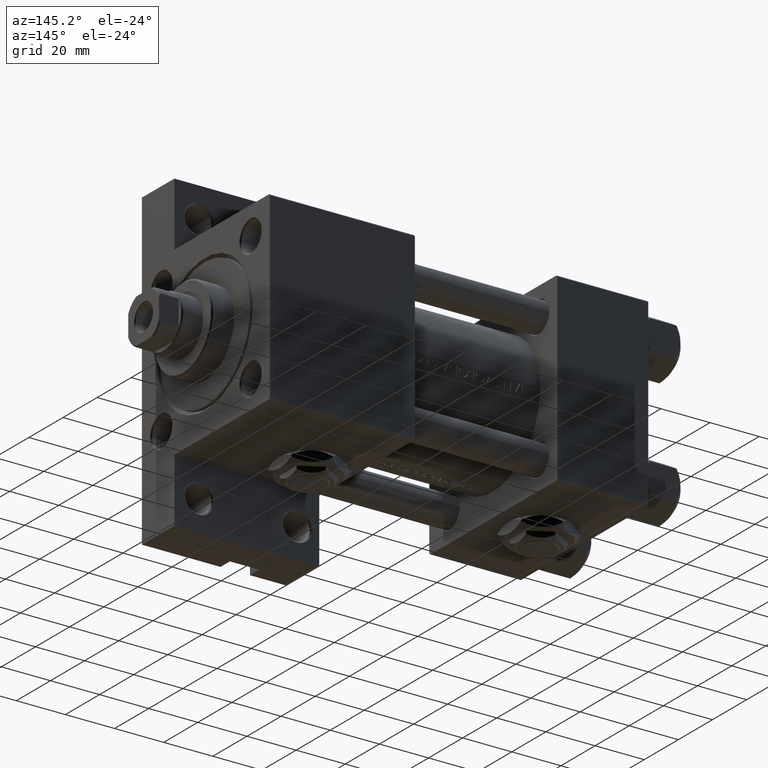
[diagram: clean part render]
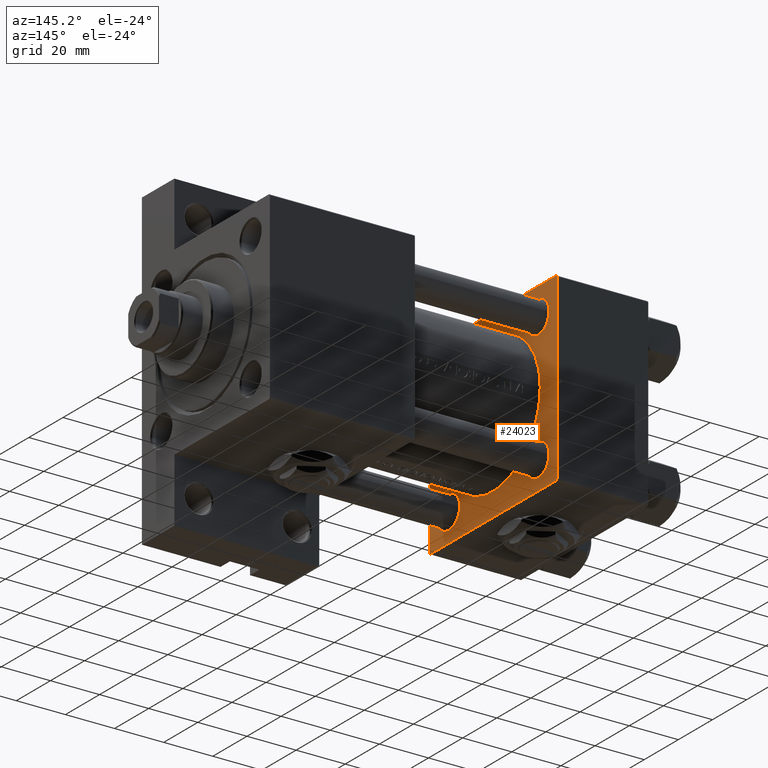
[diagram: same view with one face highlighted and labeled with its STEP entity id]
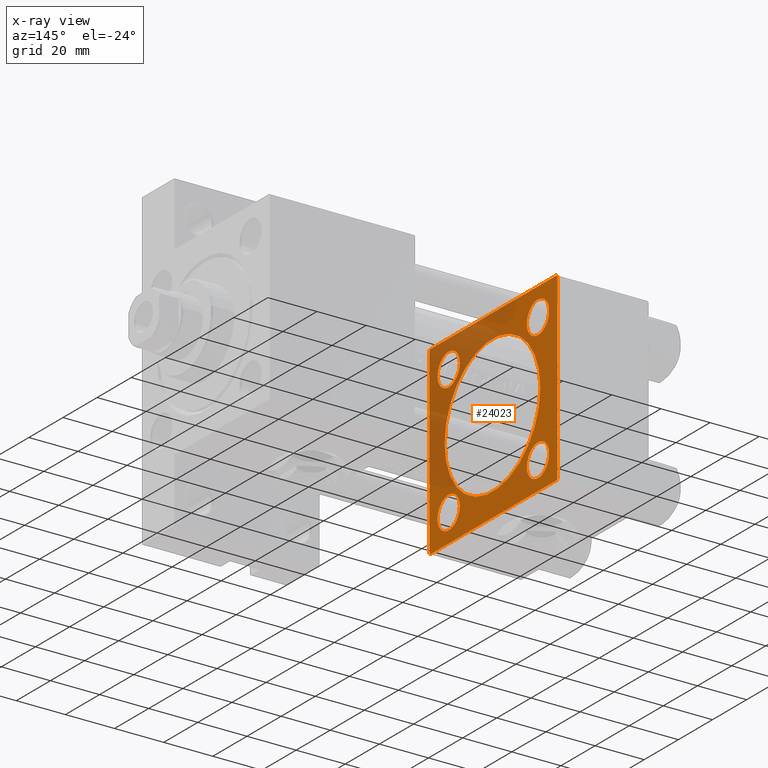
[diagram: x-ray of the same camera — body ghosted, the highlighted face saturated]
A machine part, auxiliary view. The second image highlights one B-rep face of the part: STEP entity #24023.
The next image is the same camera in x-ray: the body ghosted, the highlighted face saturated — about 33% of this face is hidden behind the body in this view.
In plain terms, the highlighted planar face has unit normal (-1, 0, -0).
Its self-contained STEP definition (entity closure, byte-faithful):
#102 = DIRECTION ( 'NONE',  ( 0.000000000000000000, 0.000000000000000000, 1.000000000000000000 ) ) ;
#528 = EDGE_CURVE ( 'NONE', #36018, #49566, #33324, .T. ) ;
#545 = AXIS2_PLACEMENT_3D ( 'NONE', #26171, #44764, #49012 ) ;
#575 = VECTOR ( 'NONE', #26869, 1000.000000000000000 ) ;
#720 = CARTESIAN_POINT ( 'NONE',  ( 37.00000000000000000, -37.00000000000002132, -37.50000000000000711 ) ) ;
#813 = AXIS2_PLACEMENT_3D ( 'NONE', #44418, #14263, #9996 ) ;
#925 = CARTESIAN_POINT ( 'NONE',  ( 37.00000000000000000, 37.49999999999999289, -37.50000000000000000 ) ) ;
#1196 = ORIENTED_EDGE ( 'NONE', *, *, #12577, .T. ) ;
#1235 = CIRCLE ( 'NONE', #2808, 28.00000000000000000 ) ;
#1755 = DIRECTION ( 'NONE',  ( 0.000000000000000000, 0.000000000000000000, 1.000000000000000000 ) ) ;
#2161 = CARTESIAN_POINT ( 'NONE',  ( 37.00000000000000000, -26.14999999999999147, -32.65000000000001279 ) ) ;
#2808 = AXIS2_PLACEMENT_3D ( 'NONE', #29521, #44099, #29023 ) ;
#3279 = EDGE_CURVE ( 'NONE', #49566, #36018, #26980, .T. ) ;
#3575 = FACE_BOUND ( 'NONE', #25466, .T. ) ;
#3740 = CARTESIAN_POINT ( 'NONE',  ( 37.00000000000000000, -26.14999999999999147, -19.65000000000000924 ) ) ;
#3825 = FACE_BOUND ( 'NONE', #18001, .T. ) ;
#4364 = DIRECTION ( 'NONE',  ( -1.000000000000000000, 0.000000000000000000, -0.000000000000000000 ) ) ;
#5252 = EDGE_CURVE ( 'NONE', #48165, #38114, #23833, .T. ) ;
#5301 = CARTESIAN_POINT ( 'NONE',  ( 37.00000000000000000, 26.14999999999999858, -19.64999999999997371 ) ) ;
#5343 = VERTEX_POINT ( 'NONE', #13260 ) ;
#5693 = CIRCLE ( 'NONE', #12106, 6.500000000000030198 ) ;
#5841 = DIRECTION ( 'NONE',  ( 0.000000000000000000, 0.000000000000000000, 1.000000000000000000 ) ) ;
#6323 = ORIENTED_EDGE ( 'NONE', *, *, #29179, .T. ) ;
#7119 = ORIENTED_EDGE ( 'NONE', *, *, #40630, .F. ) ;
#7227 = CARTESIAN_POINT ( 'NONE',  ( 37.00000000000000000, 26.14999999999999858, -26.15000000000000213 ) ) ;
#7348 = FACE_BOUND ( 'NONE', #15225, .T. ) ;
#7586 = FACE_OUTER_BOUND ( 'NONE', #20555, .T. ) ;
#7932 = DIRECTION ( 'NONE',  ( -1.000000000000000000, 0.000000000000000000, -0.000000000000000000 ) ) ;
#8048 = CIRCLE ( 'NONE', #813, 6.500000000000008882 ) ;
#8343 = CARTESIAN_POINT ( 'NONE',  ( 37.00000000000000000, 26.14999999999999858, -26.15000000000000213 ) ) ;
#8949 = VECTOR ( 'NONE', #43560, 1000.000000000000000 ) ;
#9476 = EDGE_LOOP ( 'NONE', ( #11489, #9668 ) ) ;
#9611 = EDGE_CURVE ( 'NONE', #30611, #48165, #38675, .T. ) ;
#9668 = ORIENTED_EDGE ( 'NONE', *, *, #45922, .T. ) ;
#9897 = ORIENTED_EDGE ( 'NONE', *, *, #16534, .T. ) ;
#9937 = ORIENTED_EDGE ( 'NONE', *, *, #32008, .F. ) ;
#9996 = DIRECTION ( 'NONE',  ( 0.000000000000000000, 0.000000000000000000, 1.000000000000000000 ) ) ;
#10109 = CARTESIAN_POINT ( 'NONE',  ( 37.00000000000000000, -26.14999999999999147, 32.65000000000001990 ) ) ;
#10201 = CARTESIAN_POINT ( 'NONE',  ( 37.00000000000000000, -37.00000000000002132, -37.50000000000000711 ) ) ;
#10455 = CARTESIAN_POINT ( 'NONE',  ( 37.00000000000000000, 3.490243377569955667E-15, -28.50000000000000000 ) ) ;
#10753 = DIRECTION ( 'NONE',  ( 0.000000000000000000, 0.000000000000000000, 1.000000000000000000 ) ) ;
#10779 = ORIENTED_EDGE ( 'NONE', *, *, #41252, .T. ) ;
#11489 = ORIENTED_EDGE ( 'NONE', *, *, #27934, .T. ) ;
#11541 = CARTESIAN_POINT ( 'NONE',  ( 37.00000000000000000, -37.50000000000000711, 37.49999999999999289 ) ) ;
#11700 = VERTEX_POINT ( 'NONE', #41846 ) ;
#11864 = VERTEX_POINT ( 'NONE', #46865 ) ;
#12106 = AXIS2_PLACEMENT_3D ( 'NONE', #7227, #15495, #10753 ) ;
#12487 = AXIS2_PLACEMENT_3D ( 'NONE', #27535, #20983, #40077 ) ;
#12577 = EDGE_CURVE ( 'NONE', #36341, #14070, #35992, .T. ) ;
#12694 = EDGE_LOOP ( 'NONE', ( #21571, #7119 ) ) ;
#13057 = VERTEX_POINT ( 'NONE', #10109 ) ;
#13260 = CARTESIAN_POINT ( 'NONE',  ( 37.00000000000000000, 26.14999999999999858, -32.65000000000003411 ) ) ;
#13301 = VERTEX_POINT ( 'NONE', #5301 ) ;
#13712 = VERTEX_POINT ( 'NONE', #25697 ) ;
#13840 = DIRECTION ( 'NONE',  ( -0.000000000000000000, -0.7071067811865474617, -0.7071067811865474617 ) ) ;
#14070 = VERTEX_POINT ( 'NONE', #3740 ) ;
#14263 = DIRECTION ( 'NONE',  ( -1.000000000000000000, 0.000000000000000000, -0.000000000000000000 ) ) ;
#14752 = ORIENTED_EDGE ( 'NONE', *, *, #9611, .T. ) ;
#14842 = EDGE_CURVE ( 'NONE', #11864, #33003, #34491, .T. ) ;
#15225 = EDGE_LOOP ( 'NONE', ( #10779, #9897 ) ) ;
#15495 = DIRECTION ( 'NONE',  ( -1.000000000000000000, 0.000000000000000000, -0.000000000000000000 ) ) ;
#15518 = LINE ( 'NONE', #34614, #27627 ) ;
#16534 = EDGE_CURVE ( 'NONE', #13057, #20209, #8048, .T. ) ;
#17563 = CARTESIAN_POINT ( 'NONE',  ( 37.00000000000000000, 26.14999999999999858, 19.64999999999997016 ) ) ;
#18001 = EDGE_LOOP ( 'NONE', ( #1196, #37898 ) ) ;
#18169 = FACE_BOUND ( 'NONE', #9476, .T. ) ;
#18907 = FACE_BOUND ( 'NONE', #12694, .T. ) ;
#19149 = EDGE_CURVE ( 'NONE', #14070, #36341, #34722, .T. ) ;
#19153 = PLANE ( 'NONE',  #39736 ) ;
#19180 = AXIS2_PLACEMENT_3D ( 'NONE', #34085, #7932, #22767 ) ;
#19423 = VERTEX_POINT ( 'NONE', #28830 ) ;
#19655 = DIRECTION ( 'NONE',  ( 0.000000000000000000, 0.000000000000000000, 1.000000000000000000 ) ) ;
#20209 = VERTEX_POINT ( 'NONE', #27164 ) ;
#20378 = VECTOR ( 'NONE', #29865, 1000.000000000000000 ) ;
#20471 = AXIS2_PLACEMENT_3D ( 'NONE', #27231, #4364, #102 ) ;
#20555 = EDGE_LOOP ( 'NONE', ( #9937, #40792, #29265, #27461, #6323, #38821, #14752, #27520 ) ) ;
#20847 = DIRECTION ( 'NONE',  ( -1.000000000000000000, 0.000000000000000000, -0.000000000000000000 ) ) ;
#20983 = DIRECTION ( 'NONE',  ( -1.000000000000000000, 0.000000000000000000, -0.000000000000000000 ) ) ;
#21571 = ORIENTED_EDGE ( 'NONE', *, *, #14842, .F. ) ;
#22112 = CIRCLE ( 'NONE', #12487, 6.500000000000008882 ) ;
#22767 = DIRECTION ( 'NONE',  ( 0.000000000000000000, 0.000000000000000000, 1.000000000000000000 ) ) ;
#23061 = CIRCLE ( 'NONE', #45544, 6.500000000000030198 ) ;
#23833 = LINE ( 'NONE', #720, #575 ) ;
#24023 = ADVANCED_FACE ( 'NONE', ( #3825, #18169, #7348, #3575, #18907, #7586 ), #19153, .F. ) ;
#25440 = CARTESIAN_POINT ( 'NONE',  ( 37.00000000000000000, -37.00000000000000711, 37.49999999999999289 ) ) ;
#25466 = EDGE_LOOP ( 'NONE', ( #32456, #39496 ) ) ;
#25697 = CARTESIAN_POINT ( 'NONE',  ( 37.00000000000000000, 36.99999999999997868, -37.50000000000000000 ) ) ;
#25702 = CARTESIAN_POINT ( 'NONE',  ( 37.00000000000000000, 0.000000000000000000, 0.000000000000000000 ) ) ;
#25850 = CARTESIAN_POINT ( 'NONE',  ( 37.00000000000000000, 37.49999999999999289, 37.50000000000000000 ) ) ;
#25883 = DIRECTION ( 'NONE',  ( 0.000000000000000000, -0.7071067811865474617, 0.7071067811865474617 ) ) ;
#26171 = CARTESIAN_POINT ( 'NONE',  ( 37.00000000000000000, 26.14999999999999858, 26.15000000000000213 ) ) ;
#26618 = CARTESIAN_POINT ( 'NONE',  ( 37.00000000000000000, -37.50000000000000000, -37.00000000000003553 ) ) ;
#26869 = DIRECTION ( 'NONE',  ( 0.000000000000000000, 0.7071067811865524577, -0.7071067811865426878 ) ) ;
#26957 = DIRECTION ( 'NONE',  ( -1.000000000000000000, 0.000000000000000000, -0.000000000000000000 ) ) ;
#26980 = CIRCLE ( 'NONE', #545, 6.500000000000030198 ) ;
#27164 = CARTESIAN_POINT ( 'NONE',  ( 37.00000000000000000, -26.14999999999999147, 19.65000000000000213 ) ) ;
#27231 = CARTESIAN_POINT ( 'NONE',  ( 37.00000000000000000, 26.14999999999999858, 26.15000000000000213 ) ) ;
#27461 = ORIENTED_EDGE ( 'NONE', *, *, #48753, .T. ) ;
#27520 = ORIENTED_EDGE ( 'NONE', *, *, #5252, .T. ) ;
#27535 = CARTESIAN_POINT ( 'NONE',  ( 37.00000000000000000, -26.14999999999999147, 26.15000000000000924 ) ) ;
#27627 = VECTOR ( 'NONE', #39126, 1000.000000000000114 ) ;
#27751 = CARTESIAN_POINT ( 'NONE',  ( 37.00000000000000000, 37.49999999999999289, 37.50000000000000000 ) ) ;
#27934 = EDGE_CURVE ( 'NONE', #5343, #13301, #5693, .T. ) ;
#28830 = CARTESIAN_POINT ( 'NONE',  ( 37.00000000000000000, 37.49999999999999289, -36.99999999999998579 ) ) ;
#29023 = DIRECTION ( 'NONE',  ( 0.000000000000000000, 0.000000000000000000, 1.000000000000000000 ) ) ;
#29179 = EDGE_CURVE ( 'NONE', #35846, #45398, #43071, .T. ) ;
#29265 = ORIENTED_EDGE ( 'NONE', *, *, #38634, .F. ) ;
#29521 = CARTESIAN_POINT ( 'NONE',  ( 37.00000000000000000, 6.123233995736772199E-17, -0.5000000000000004441 ) ) ;
#29642 = CARTESIAN_POINT ( 'NONE',  ( 37.00000000000000000, -26.14999999999999147, -26.15000000000000924 ) ) ;
#29865 = DIRECTION ( 'NONE',  ( 0.000000000000000000, 0.000000000000000000, -1.000000000000000000 ) ) ;
#30199 = CARTESIAN_POINT ( 'NONE',  ( 37.00000000000000000, -37.50000000000000711, 36.99999999999999289 ) ) ;
#30611 = VERTEX_POINT ( 'NONE', #30199 ) ;
#31834 = LINE ( 'NONE', #925, #32331 ) ;
#32008 = EDGE_CURVE ( 'NONE', #13712, #38114, #31834, .T. ) ;
#32331 = VECTOR ( 'NONE', #39360, 1000.000000000000000 ) ;
#32456 = ORIENTED_EDGE ( 'NONE', *, *, #528, .T. ) ;
#33003 = VERTEX_POINT ( 'NONE', #10455 ) ;
#33324 = CIRCLE ( 'NONE', #20471, 6.500000000000030198 ) ;
#33491 = DIRECTION ( 'NONE',  ( -0.000000000000000000, 0.000000000000000000, 1.000000000000000000 ) ) ;
#33932 = CARTESIAN_POINT ( 'NONE',  ( 37.00000000000000000, 36.99999999999999289, 37.50000000000000000 ) ) ;
#34085 = CARTESIAN_POINT ( 'NONE',  ( 37.00000000000000000, -26.14999999999999147, -26.15000000000000924 ) ) ;
#34491 = CIRCLE ( 'NONE', #36064, 28.00000000000000000 ) ;
#34614 = CARTESIAN_POINT ( 'NONE',  ( 37.00000000000000000, 37.49999999999999289, -36.99999999999998579 ) ) ;
#34722 = CIRCLE ( 'NONE', #41134, 6.500000000000002665 ) ;
#35216 = VECTOR ( 'NONE', #38433, 1000.000000000000000 ) ;
#35846 = VERTEX_POINT ( 'NONE', #33932 ) ;
#35992 = CIRCLE ( 'NONE', #19180, 6.500000000000002665 ) ;
#36018 = VERTEX_POINT ( 'NONE', #17563 ) ;
#36064 = AXIS2_PLACEMENT_3D ( 'NONE', #43778, #44029, #5841 ) ;
#36341 = VERTEX_POINT ( 'NONE', #2161 ) ;
#37256 = DIRECTION ( 'NONE',  ( -1.000000000000000000, 0.000000000000000000, -0.000000000000000000 ) ) ;
#37696 = LINE ( 'NONE', #48985, #40139 ) ;
#37898 = ORIENTED_EDGE ( 'NONE', *, *, #19149, .T. ) ;
#38114 = VERTEX_POINT ( 'NONE', #10201 ) ;
#38433 = DIRECTION ( 'NONE',  ( 0.000000000000000000, 9.251858538542971581E-17, -1.000000000000000000 ) ) ;
#38634 = EDGE_CURVE ( 'NONE', #11700, #19423, #41153, .T. ) ;
#38675 = LINE ( 'NONE', #11541, #35216 ) ;
#38767 = EDGE_CURVE ( 'NONE', #13712, #19423, #15518, .T. ) ;
#38821 = ORIENTED_EDGE ( 'NONE', *, *, #43133, .T. ) ;
#39126 = DIRECTION ( 'NONE',  ( -0.000000000000000000, 0.7071067811865474617, 0.7071067811865474617 ) ) ;
#39360 = DIRECTION ( 'NONE',  ( 0.000000000000000000, -1.000000000000000000, -9.251858538542972814E-17 ) ) ;
#39496 = ORIENTED_EDGE ( 'NONE', *, *, #3279, .T. ) ;
#39736 = AXIS2_PLACEMENT_3D ( 'NONE', #25702, #37256, #33491 ) ;
#39847 = VECTOR ( 'NONE', #13840, 1000.000000000000114 ) ;
#40077 = DIRECTION ( 'NONE',  ( 0.000000000000000000, 0.000000000000000000, 1.000000000000000000 ) ) ;
#40139 = VECTOR ( 'NONE', #25883, 1000.000000000000114 ) ;
#40630 = EDGE_CURVE ( 'NONE', #33003, #11864, #1235, .T. ) ;
#40709 = CARTESIAN_POINT ( 'NONE',  ( 37.00000000000000000, 26.14999999999999858, 32.65000000000004121 ) ) ;
#40792 = ORIENTED_EDGE ( 'NONE', *, *, #38767, .T. ) ;
#41134 = AXIS2_PLACEMENT_3D ( 'NONE', #29642, #20847, #1755 ) ;
#41153 = LINE ( 'NONE', #25850, #20378 ) ;
#41252 = EDGE_CURVE ( 'NONE', #20209, #13057, #22112, .T. ) ;
#41846 = CARTESIAN_POINT ( 'NONE',  ( 37.00000000000000000, 37.49999999999999289, 37.00000000000000000 ) ) ;
#43071 = LINE ( 'NONE', #27751, #8949 ) ;
#43133 = EDGE_CURVE ( 'NONE', #45398, #30611, #48018, .T. ) ;
#43560 = DIRECTION ( 'NONE',  ( 0.000000000000000000, -1.000000000000000000, -9.251858538542971581E-17 ) ) ;
#43778 = CARTESIAN_POINT ( 'NONE',  ( 37.00000000000000000, 6.123233995736772199E-17, -0.5000000000000004441 ) ) ;
#44000 = CARTESIAN_POINT ( 'NONE',  ( 37.00000000000000000, -37.50000000000000711, 36.99999999999999289 ) ) ;
#44029 = DIRECTION ( 'NONE',  ( 1.000000000000000000, -0.000000000000000000, 0.000000000000000000 ) ) ;
#44099 = DIRECTION ( 'NONE',  ( 1.000000000000000000, -0.000000000000000000, 0.000000000000000000 ) ) ;
#44418 = CARTESIAN_POINT ( 'NONE',  ( 37.00000000000000000, -26.14999999999999147, 26.15000000000000924 ) ) ;
#44764 = DIRECTION ( 'NONE',  ( -1.000000000000000000, 0.000000000000000000, -0.000000000000000000 ) ) ;
#45398 = VERTEX_POINT ( 'NONE', #25440 ) ;
#45544 = AXIS2_PLACEMENT_3D ( 'NONE', #8343, #26957, #19655 ) ;
#45922 = EDGE_CURVE ( 'NONE', #13301, #5343, #23061, .T. ) ;
#46865 = CARTESIAN_POINT ( 'NONE',  ( 37.00000000000000000, 6.123233995736772199E-17, 27.50000000000000000 ) ) ;
#48018 = LINE ( 'NONE', #44000, #39847 ) ;
#48165 = VERTEX_POINT ( 'NONE', #26618 ) ;
#48753 = EDGE_CURVE ( 'NONE', #11700, #35846, #37696, .T. ) ;
#48985 = CARTESIAN_POINT ( 'NONE',  ( 37.00000000000000000, 36.99999999999999289, 37.50000000000000000 ) ) ;
#49012 = DIRECTION ( 'NONE',  ( 0.000000000000000000, 0.000000000000000000, 1.000000000000000000 ) ) ;
#49566 = VERTEX_POINT ( 'NONE', #40709 ) ;